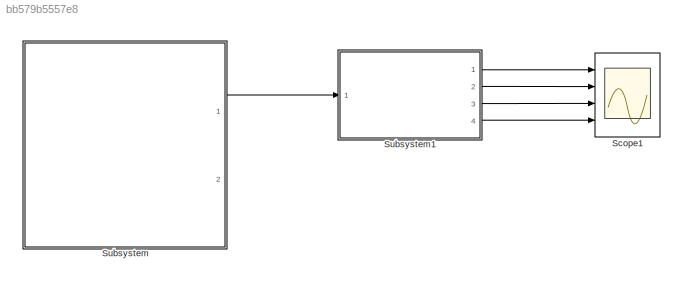
MODEL slx_bb579b5557e8
KIND model
CONFIG AbsTol = auto
CONFIG EnableMultiTasking = off
CONFIG FixedStep = auto
CONFIG MaxStep = auto
CONFIG MinStep = auto
CONFIG RelTol = 1e-3
CONFIG SampleTimeConstraint = Unconstrained
CONFIG SolverName = VariableStepAuto
CONFIG StartTime = 0.0
CONFIG StopTime = 1
BLOCK [Scope] Scope1
  Floating = off
  NumInputPorts = 4
  Ports = [4]
  ScopeSpecificationString = Simulink.scopes.TimeScopeBlockCfg('CurrentConfiguration', extmgr.ConfigurationSet(extmgr.Configuration('Core','General UI',true),extmgr.Configuration('Core','Source UI',true),extmgr.Configuration('Sources','WiredSimulink',true),extmgr.Configuration('Visuals','Time Domain',true,'SerializedDisplays',{struct('MinYLimReal','-1101.26434','MaxYLimReal','9881.3787','YLabelReal','','MinYLimMag','  0.00000...<+3619ch>
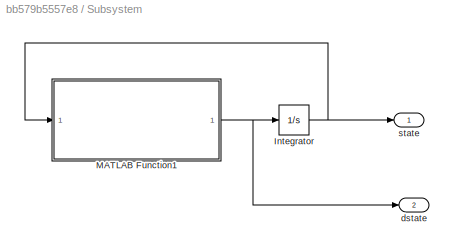
BLOCK [SubSystem] Subsystem
  Ports = [0, 2]
  RequestExecContextInheritance = off
BLOCK [Integrator] Subsystem/Integrator
  InitialCondition = params.s0
  Ports = [1, 1]
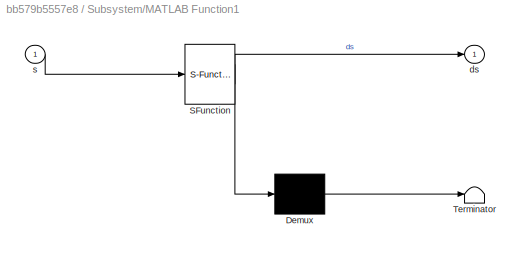
BLOCK [SubSystem] Subsystem/MATLAB Function1
  ErrorFcn = Stateflow.Translate.translate
  PermitHierarchicalResolution = ExplicitOnly
  Ports = [1, 1]
  RequestExecContextInheritance = off
  SFBlockType = MATLAB Function
  TreatAsAtomicUnit = on
BLOCK [Demux] Subsystem/MATLAB Function1/ Demux 
  Outputs = 1
  Ports = [1, 1]
BLOCK [S-Function] Subsystem/MATLAB Function1/ SFunction 
  EnableBusSupport = on
  FunctionName = sf_sfun
  Parameters = params
  PortCounts = [1 2]
  Ports = [1, 2]
  SFcnIsStateOwnerBlock = off
  SFunctionDeploymentMode = off
  Tag = Stateflow S-Function 4
BLOCK [Terminator] Subsystem/MATLAB Function1/ Terminator 
BLOCK [Outport] Subsystem/MATLAB Function1/ds
BLOCK [Inport] Subsystem/MATLAB Function1/s
BLOCK [Outport] Subsystem/dstate
  Port = 2
BLOCK [Outport] Subsystem/state
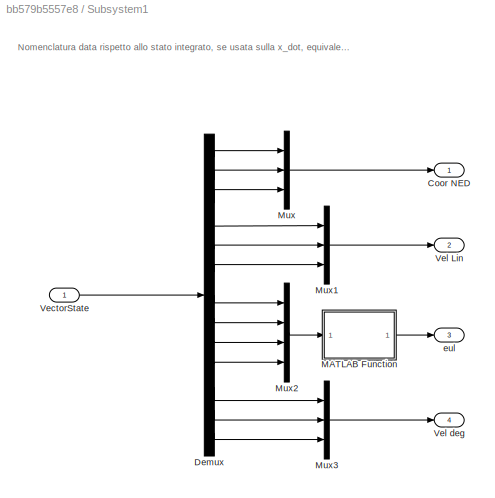
BLOCK [SubSystem] Subsystem1
  Ports = [1, 4]
  RequestExecContextInheritance = off
BLOCK [Outport] Subsystem1/Coor NED
BLOCK [Demux] Subsystem1/Demux
  Outputs = 13
  Ports = [1, 13]
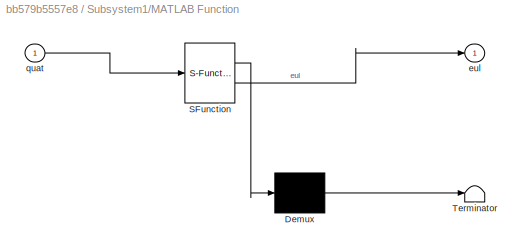
BLOCK [SubSystem] Subsystem1/MATLAB Function
  ErrorFcn = Stateflow.Translate.translate
  PermitHierarchicalResolution = ExplicitOnly
  Ports = [1, 1]
  RequestExecContextInheritance = off
  SFBlockType = MATLAB Function
  TreatAsAtomicUnit = on
BLOCK [Demux] Subsystem1/MATLAB Function/ Demux 
  Outputs = 1
  Ports = [1, 1]
BLOCK [S-Function] Subsystem1/MATLAB Function/ SFunction 
  EnableBusSupport = on
  FunctionName = sf_sfun
  PortCounts = [1 2]
  Ports = [1, 2]
  SFcnIsStateOwnerBlock = off
  SFunctionDeploymentMode = off
  Tag = Stateflow S-Function 2
BLOCK [Terminator] Subsystem1/MATLAB Function/ Terminator 
BLOCK [Outport] Subsystem1/MATLAB Function/eul
BLOCK [Inport] Subsystem1/MATLAB Function/quat
BLOCK [Mux] Subsystem1/Mux
  DisplayOption = bar
  Inputs = 3
  Ports = [3, 1]
BLOCK [Mux] Subsystem1/Mux1
  DisplayOption = bar
  Inputs = 3
  Ports = [3, 1]
BLOCK [Mux] Subsystem1/Mux2
  DisplayOption = bar
  Ports = [4, 1]
BLOCK [Mux] Subsystem1/Mux3
  DisplayOption = bar
  Inputs = 3
  Ports = [3, 1]
BLOCK [Inport] Subsystem1/VectorState
BLOCK [Outport] Subsystem1/Vel Lin
  Port = 2
BLOCK [Outport] Subsystem1/Vel deg
  Port = 4
BLOCK [Outport] Subsystem1/eul
  Port = 3
ANNOTATION Subsystem1: Nomenclatura data rispetto allo stato integrato, se usata sulla x_dot, equivale alle loro derivate
NET Subsystem/Integrator:1 -> Subsystem/MATLAB Function1:1, Subsystem/state:1
NET Subsystem/MATLAB Function1:1 -> Subsystem/Integrator:1, Subsystem/dstate:1
LINE Subsystem1/Demux:1 -> Subsystem1/Mux:1
LINE Subsystem1/Demux:10 -> Subsystem1/Mux2:4
LINE Subsystem1/Demux:11 -> Subsystem1/Mux3:1
LINE Subsystem1/Demux:12 -> Subsystem1/Mux3:2
LINE Subsystem1/Demux:13 -> Subsystem1/Mux3:3
LINE Subsystem1/Demux:2 -> Subsystem1/Mux:2
LINE Subsystem1/Demux:3 -> Subsystem1/Mux:3
LINE Subsystem1/Demux:4 -> Subsystem1/Mux1:1
LINE Subsystem1/Demux:5 -> Subsystem1/Mux1:2
LINE Subsystem1/Demux:6 -> Subsystem1/Mux1:3
LINE Subsystem1/Demux:7 -> Subsystem1/Mux2:1
LINE Subsystem1/Demux:8 -> Subsystem1/Mux2:2
LINE Subsystem1/Demux:9 -> Subsystem1/Mux2:3
LINE Subsystem1/MATLAB Function:1 -> Subsystem1/eul:1
LINE Subsystem1/Mux1:1 -> Subsystem1/Vel Lin:1
LINE Subsystem1/Mux2:1 -> Subsystem1/MATLAB Function:1
LINE Subsystem1/Mux3:1 -> Subsystem1/Vel deg:1
LINE Subsystem1/Mux:1 -> Subsystem1/Coor NED:1
LINE Subsystem1/VectorState:1 -> Subsystem1/Demux:1
LINE Subsystem1:1 -> Scope1:1
LINE Subsystem1:2 -> Scope1:2
LINE Subsystem1:3 -> Scope1:3
LINE Subsystem1:4 -> Scope1:4
LINE Subsystem:1 -> Subsystem1:1
note: NET lines group one-source signal fan-out (src -> all destinations, sorted); 1:1 wires keep LINE
CHART Subsystem1/MATLAB Function states=1 transitions=1
  STATE_LABEL 'eML_blk_kernel()'
  STATE_LABEL "SCRIPT:\nfunction eul = quat2eul(quat)\na = quat2eul(quat');\neul=a';\nend\n"
CHART Subsystem/MATLAB Function1 states=1 transitions=1
  STATE_LABEL 'eML_blk_kernel()'
  STATE_LABEL "SCRIPT:\nfunction ds = Dynamics_v1(s, params)\n\n\n\n% Initialize integration vectors and parameters\n\nds = zeros(size(s));\n\n%s= [x y z q0 q1 q2 q3 u v w p q r]\n\n% Extract attitude, angular velocity \nq =  s(4:7);\nomega= s(11:13);\n\n%position, linear velocity\nned=s(1:3);\nvel=s(8:10);\n\n%quat2eul\neul=quat2eul(q');\n\n\n%%%%%%%%%%%%%%%%%% Attitude Kinematics Equations (Quaternions) %%%%%%%%%%%%%%%%%%\nOm = [0, -...<+1162ch>"
CHART  states=0 transitions=0
CHART  states=0 transitions=0
